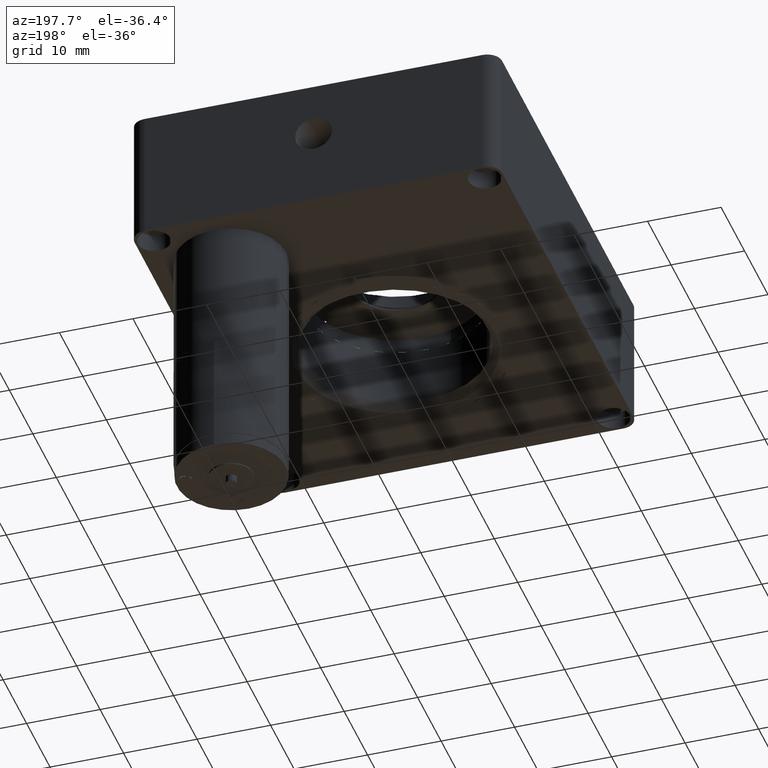
[diagram: clean part render]
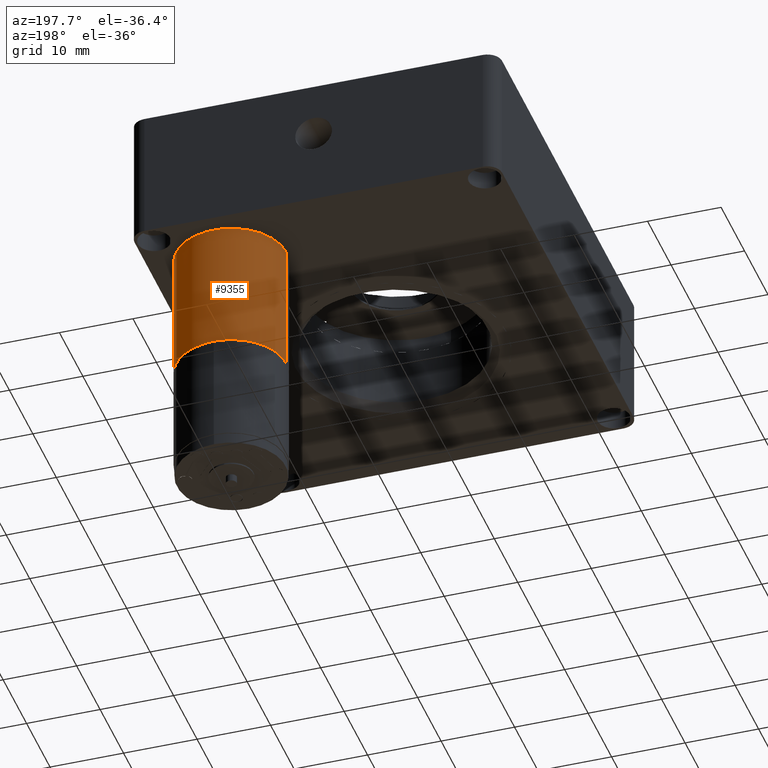
[diagram: same view with one face highlighted and labeled with its STEP entity id]
A machine part, auxiliary view. The second image highlights one B-rep face of the part: STEP entity #9355.
In plain terms, the highlighted cylindrical surface (partial cylindrical patch) has radius 7.5 mm, axis along (-0, -0, -1).
Its self-contained STEP definition (entity closure, byte-faithful):
#200 = CARTESIAN_POINT ( 'NONE',  ( 31.89999999999997700, 49.94153162899191000, -2.500000000000002200 ) ) ;
#248 = CARTESIAN_POINT ( 'NONE',  ( 46.89999999999997700, 49.94153162899191000, -2.500000000000002200 ) ) ;
#249 = EDGE_LOOP ( 'NONE', ( #1562, #542, #4977, #5586 ) ) ;
#542 = ORIENTED_EDGE ( 'NONE', *, *, #6709, .T. ) ;
#851 = CARTESIAN_POINT ( 'NONE',  ( 39.39999999999997700, 49.94153162899191000, -2.500000000000002200 ) ) ;
#1562 = ORIENTED_EDGE ( 'NONE', *, *, #4683, .F. ) ;
#1644 = DIRECTION ( 'NONE',  ( 1.000000000000000000, 0.0000000000000000000, 0.0000000000000000000 ) ) ;
#1868 = VERTEX_POINT ( 'NONE', #2158 ) ;
#2158 = CARTESIAN_POINT ( 'NONE',  ( 31.89999999999997700, 49.94153162899191000, -2.500000000000002200 ) ) ;
#2343 = CARTESIAN_POINT ( 'NONE',  ( 39.39999999999997700, 49.94153162899191000, -20.90000000000000200 ) ) ;
#2642 = CARTESIAN_POINT ( 'NONE',  ( 31.89999999999997700, 49.94153162899191000, -20.90000000000000200 ) ) ;
#2949 = VECTOR ( 'NONE', #6704, 1000.000000000000000 ) ;
#3131 = DIRECTION ( 'NONE',  ( 1.000000000000000000, 0.0000000000000000000, 0.0000000000000000000 ) ) ;
#3715 = CIRCLE ( 'NONE', #7670, 7.500000000000000000 ) ;
#4683 = EDGE_CURVE ( 'NONE', #8614, #1868, #6325, .T. ) ;
#4971 = DIRECTION ( 'NONE',  ( -0.0000000000000000000, -0.0000000000000000000, -1.000000000000000000 ) ) ;
#4977 = ORIENTED_EDGE ( 'NONE', *, *, #9040, .T. ) ;
#5090 = LINE ( 'NONE', #248, #2949 ) ;
#5183 = AXIS2_PLACEMENT_3D ( 'NONE', #851, #6520, #1644 ) ;
#5304 = CARTESIAN_POINT ( 'NONE',  ( 46.89999999999997700, 49.94153162899191000, -20.90000000000000200 ) ) ;
#5586 = ORIENTED_EDGE ( 'NONE', *, *, #7026, .F. ) ;
#6031 = LINE ( 'NONE', #200, #10381 ) ;
#6325 = CIRCLE ( 'NONE', #5183, 7.500000000000000000 ) ;
#6520 = DIRECTION ( 'NONE',  ( 0.0000000000000000000, 0.0000000000000000000, 1.000000000000000000 ) ) ;
#6704 = DIRECTION ( 'NONE',  ( -0.0000000000000000000, -0.0000000000000000000, -1.000000000000000000 ) ) ;
#6709 = EDGE_CURVE ( 'NONE', #8614, #7391, #5090, .T. ) ;
#7026 = EDGE_CURVE ( 'NONE', #1868, #7401, #6031, .T. ) ;
#7391 = VERTEX_POINT ( 'NONE', #5304 ) ;
#7401 = VERTEX_POINT ( 'NONE', #2642 ) ;
#7486 = FACE_OUTER_BOUND ( 'NONE', #249, .T. ) ;
#7670 = AXIS2_PLACEMENT_3D ( 'NONE', #2343, #7992, #3131 ) ;
#7689 = DIRECTION ( 'NONE',  ( -1.000000000000000000, 0.0000000000000000000, 0.0000000000000000000 ) ) ;
#7949 = AXIS2_PLACEMENT_3D ( 'NONE', #8466, #9240, #7689 ) ;
#7992 = DIRECTION ( 'NONE',  ( 0.0000000000000000000, 0.0000000000000000000, 1.000000000000000000 ) ) ;
#8466 = CARTESIAN_POINT ( 'NONE',  ( 39.39999999999997700, 49.94153162899191000, -2.500000000000002200 ) ) ;
#8614 = VERTEX_POINT ( 'NONE', #9905 ) ;
#8652 = CYLINDRICAL_SURFACE ( 'NONE', #7949, 7.500000000000000000 ) ;
#9040 = EDGE_CURVE ( 'NONE', #7391, #7401, #3715, .T. ) ;
#9240 = DIRECTION ( 'NONE',  ( -0.0000000000000000000, -0.0000000000000000000, -1.000000000000000000 ) ) ;
#9355 = ADVANCED_FACE ( 'NONE', ( #7486 ), #8652, .T. ) ;
#9905 = CARTESIAN_POINT ( 'NONE',  ( 46.89999999999997700, 49.94153162899191000, -2.500000000000002200 ) ) ;
#10381 = VECTOR ( 'NONE', #4971, 1000.000000000000000 ) ;